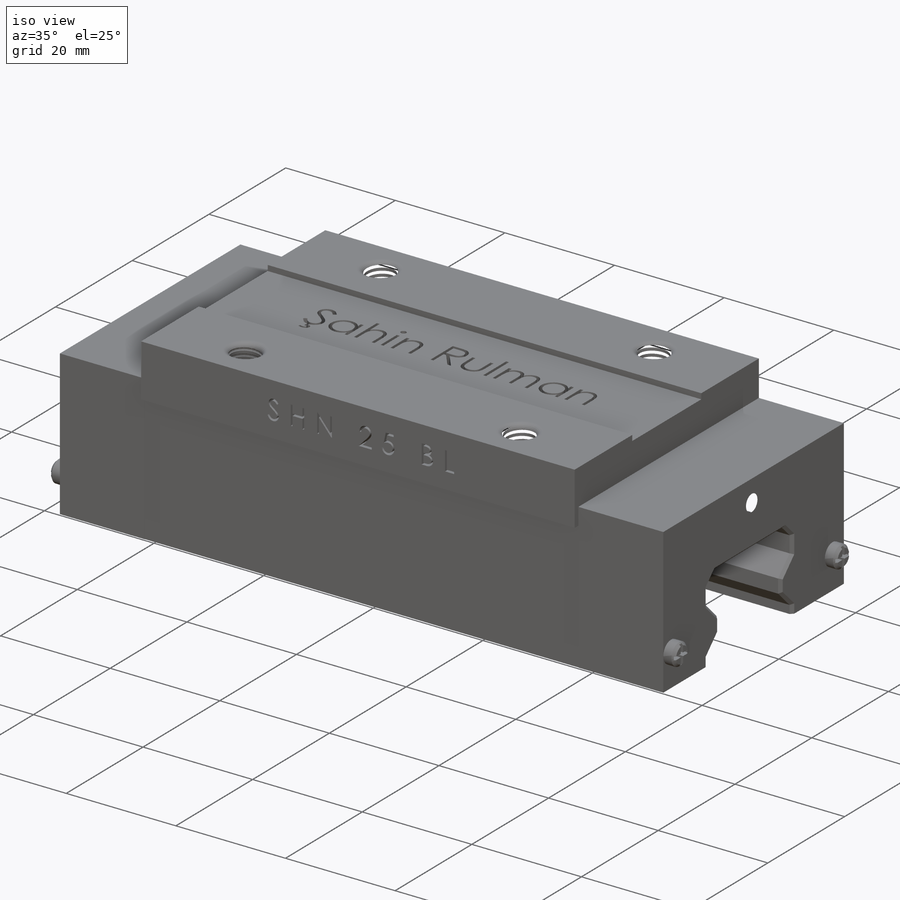
[diagram: iso view]
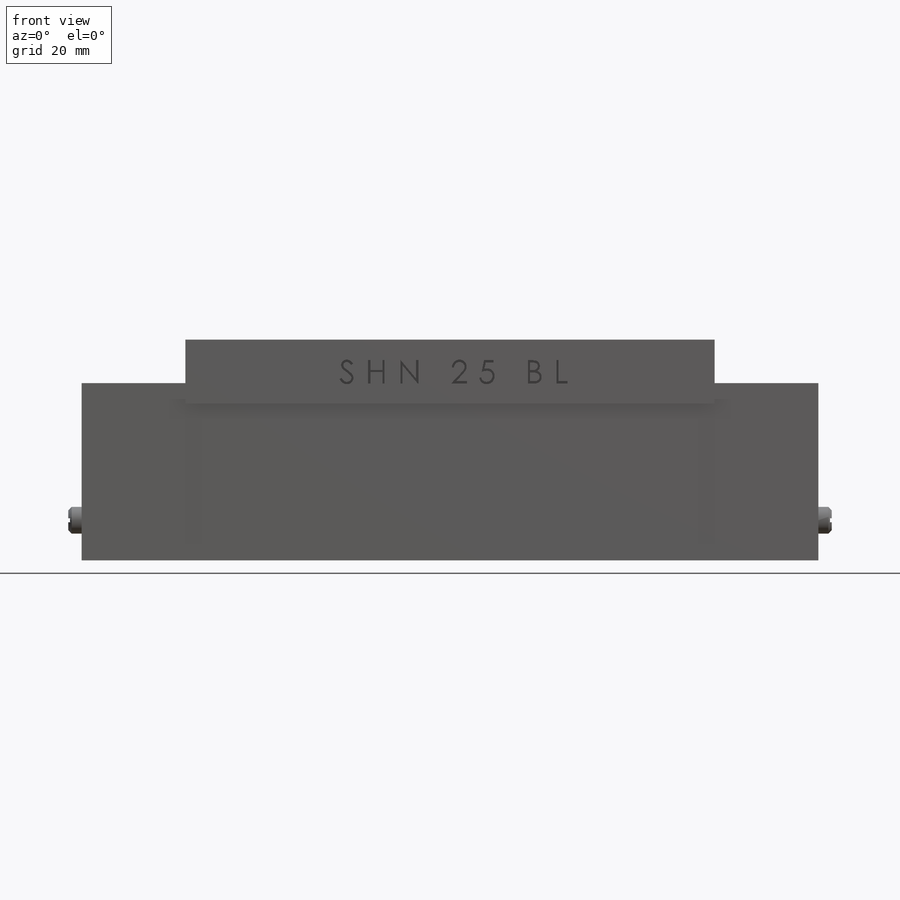
[diagram: front view]
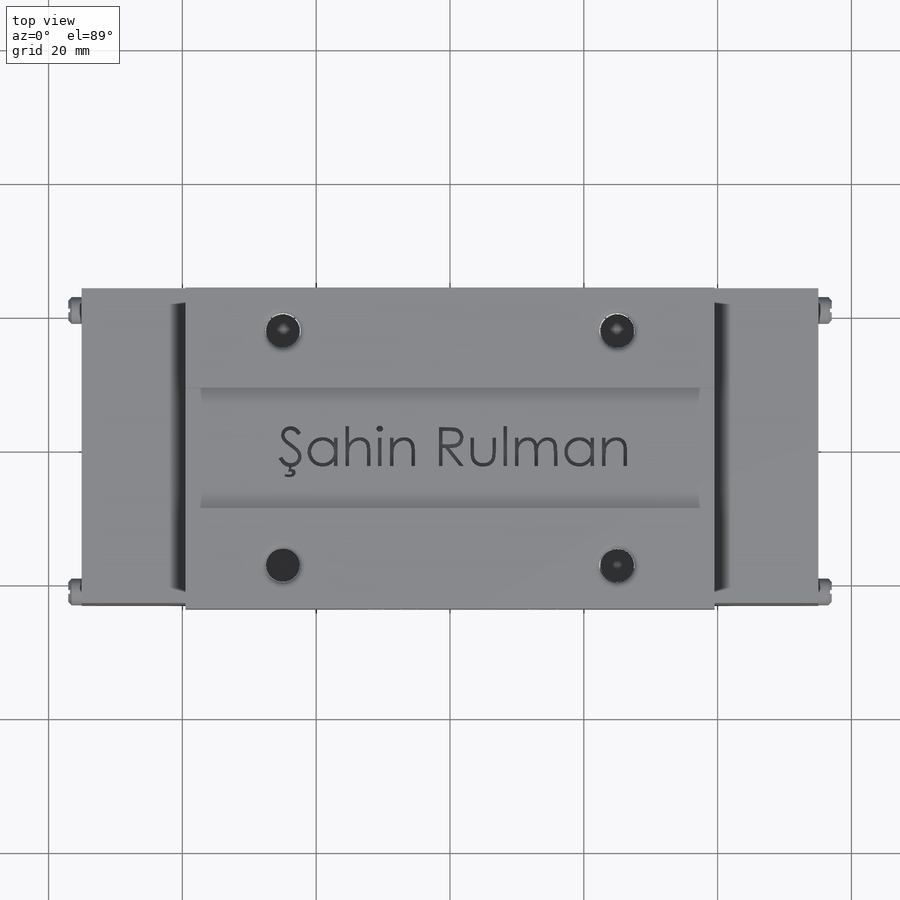
[diagram: top view]
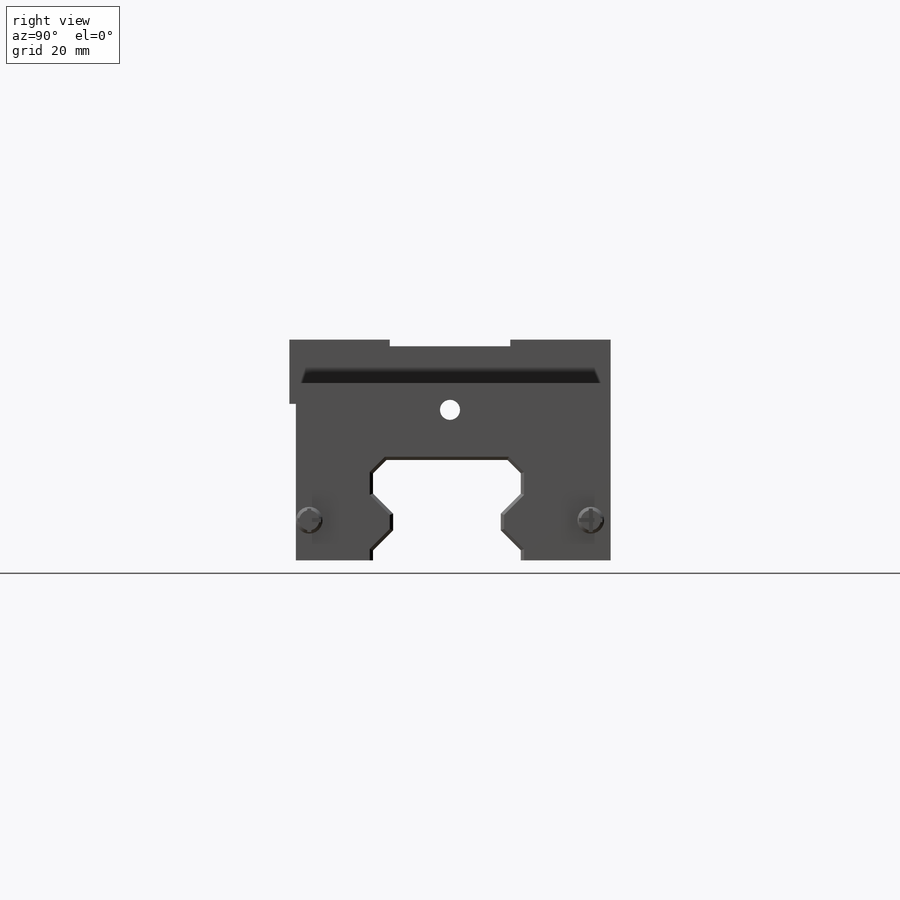
[diagram: right view]
SOLIDWORKS PART (.sldprt)
format: sldprt  version: not decoded by parser v0  size: 1,704,960 bytes
history: native  units: mm
features: sketch x12, mirror x7, cut_extrude x6, extrude x3, chamfer x2, material x1, fillet x1, helix x1, plane x1, sweep x1 (+11 scaffold rows collapsed)
feature tree (46):
  scaffold x11  (default folders/planes/origin — collapsed)
  material  "Material <not specified>"
  sketch  "Sketch1"  dims[D1=48.0mm D2=24.0mm D3=0.0mm D4=40.0mm D5=9.6mm D6=1.0mm D7=7.0mm]
  extrude  "Boss-Extrude1"  Depth=79.1mm
  sketch  "Sketch2"  dims[D1=6.5mm]
  extrude  "Boss-Extrude2"  Depth=15.5mm
  sketch  "Sketch3"  dims[D3=1.0mm D1=15.0mm D2=15.0mm]
  cut_extrude  "Cut-Extrude1"  [1 undecoded]
  mirror  "Mirror1"
  sketch  "Sketch7"  dims[D2=4.0mm D1=6.0mm D5=3.5mm D6=1.75mm D7=3.5mm D8=1.75mm D3=0.3mm D4=0.3mm]
  extrude  "Boss-Extrude5"  Depth=2mm
  chamfer  "Chamfer1"  Distance=0.5mm Angle=45deg
  mirror  "Mirror2"
  mirror  "Mirror3"
  mirror  "Mirror4"
  sketch  "Sketch8"  dims[c1.D3=5.0mm c1.D1=25.0mm c1.D2=25.0mm c1.D4=25.0mm c1.D5=25.0mm c2.D1=17.5mm c2.D2=17.5mm]
  cut_extrude  "Cut-Extrude2"  Depth=9.6mm
  fillet  "Fillet1"  Radius=1mm
  sketch  "Sketch9"
  sketch  "Sketch11"  dims[c1.D1=23.0mm c1.D2=23.0mm c2.D1=23.0mm c2.D2=11.5mm c2.D4=2.0mm c2.D5=2.0mm c2.D6=3.0mm c2.D7=3.0mm c2.D8=3.0mm c2.D9=2.5mm c2.D10=3.0mm c2.D11=3.0mm c2.D12=8.5mm c2.D3=22.0mm]
  cut_extrude  "Cut-Extrude3"  [1 undecoded]
  chamfer  "Chamfer2"  Distance=0.5mm Angle=45deg
  sketch  "Sketch12"
  cut_extrude  "Cut-Extrude4"  Depth=2mm
  sketch  "Sketch13"
  cut_extrude  "Cut-Extrude5"  Depth=2mm
  sketch  "Sketch15"
  helix  "Helix/Spiral2"  Pitch=9.6mm
  plane  "Plane2"
  sketch  "Sketch16"  dims[D1=0.5mm]
  sweep  "Cut-Sweep2"
  mirror  "Mirror7"
  mirror  "Mirror8"
  sketch  "Sketch17"  dims[D1=3.0mm D2=4.0mm]
  cut_extrude  "Cut-Extrude6"  [1 undecoded]
  mirror  "Mirror9"
decode coverage: 18 of 33 modeling features carry decoded parameters
note: 3 parameter values undecoded
summary: no parameter record found for 3 features
note: suppression state not decoded; provenance and decode notes live in map.json
